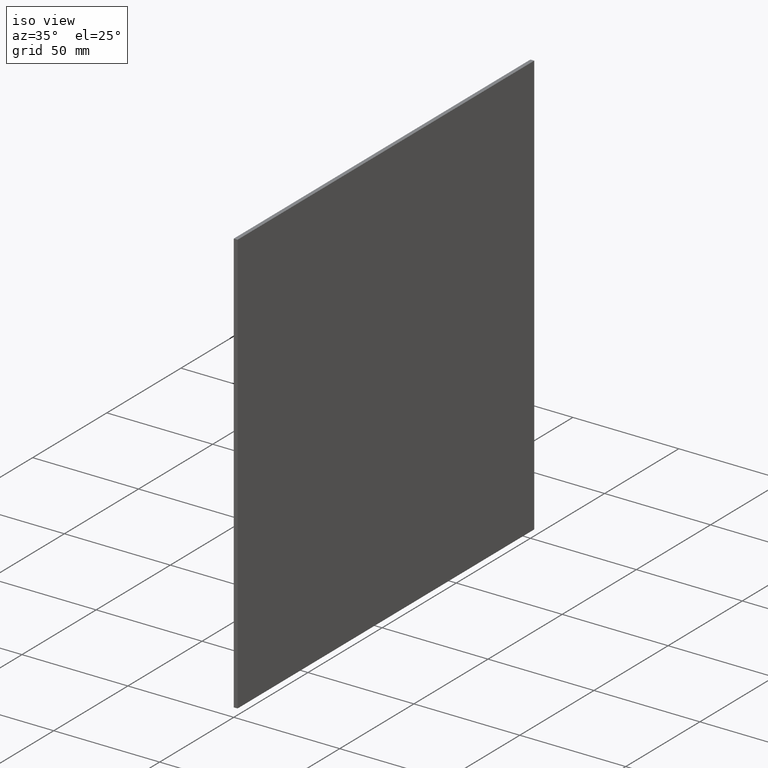
[diagram: clean part render]
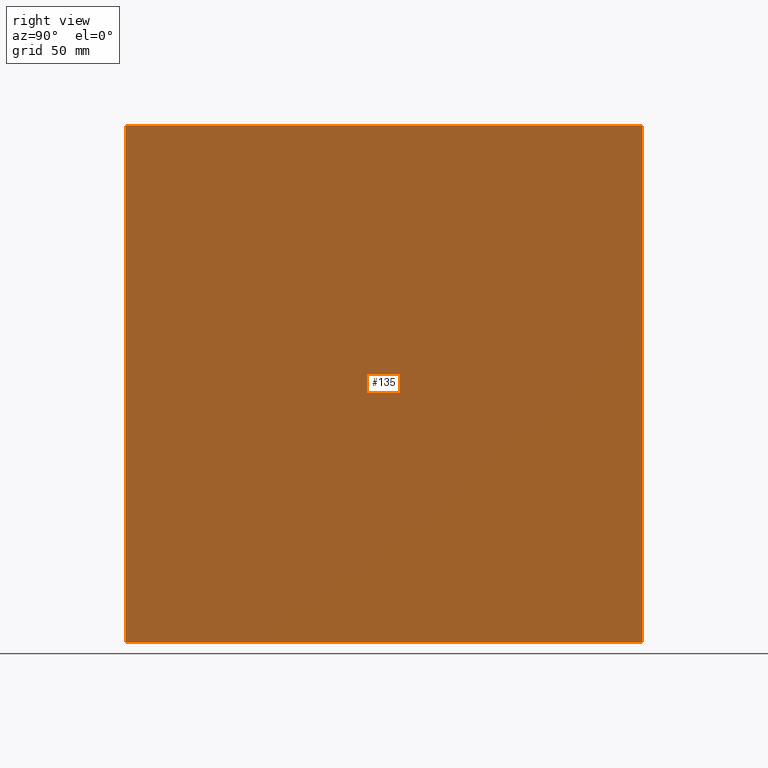
[diagram: tour spotlight — one face highlighted and labeled with its STEP entity id]
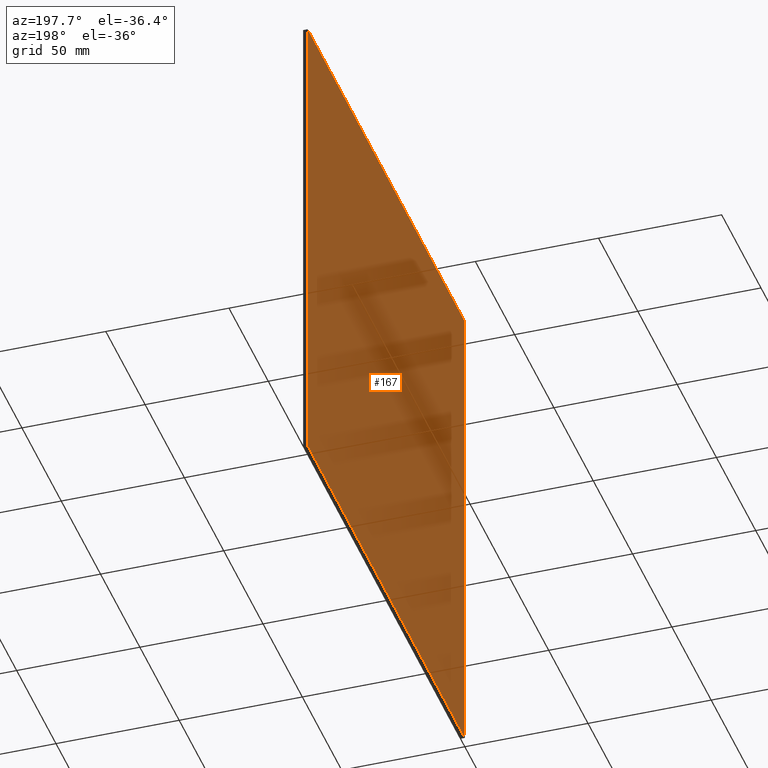
[diagram: tour spotlight — one face highlighted and labeled with its STEP entity id]
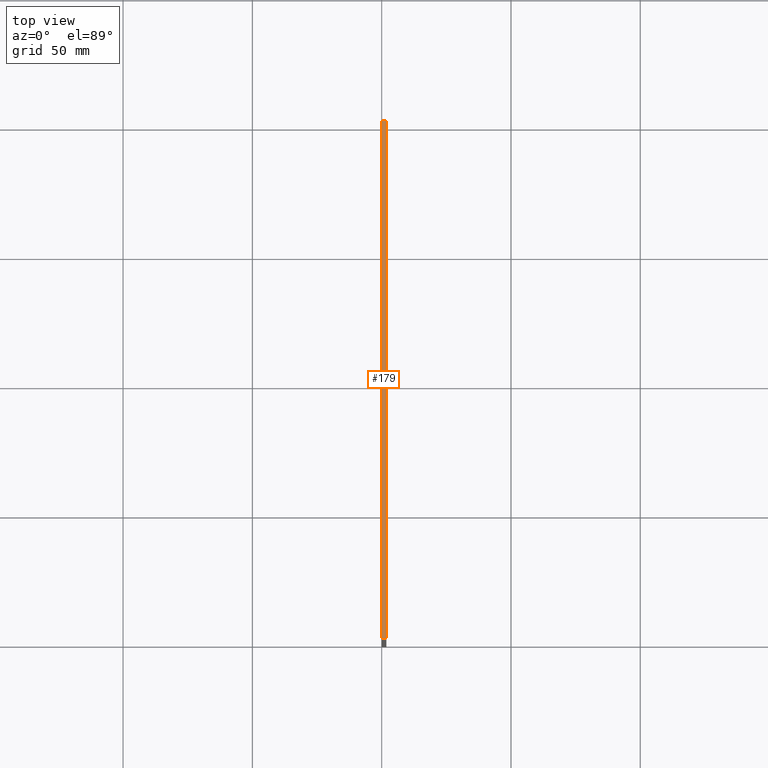
[diagram: tour spotlight — one face highlighted and labeled with its STEP entity id]
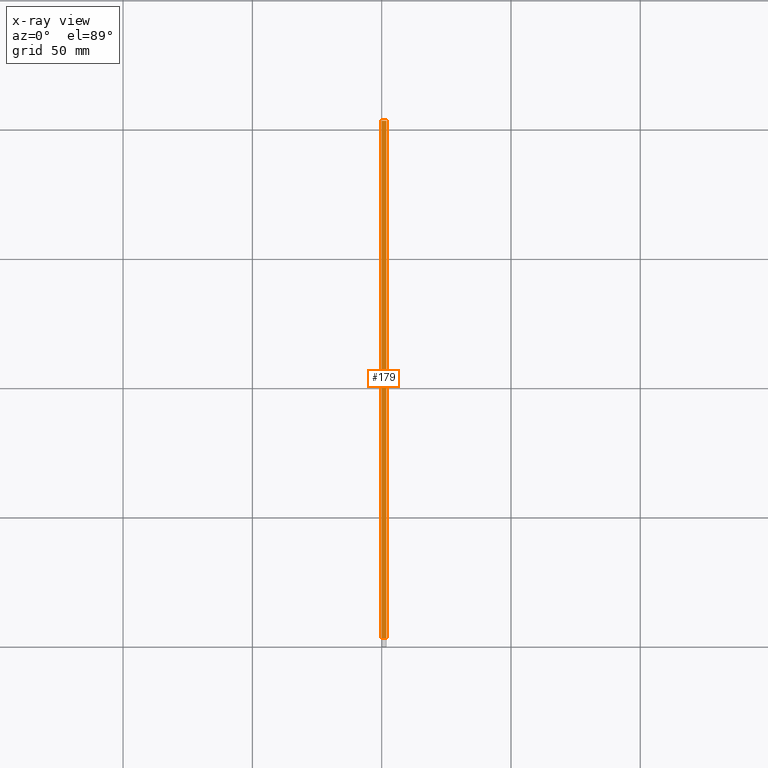
[diagram: x-ray of the same camera — body ghosted, this tour face saturated]
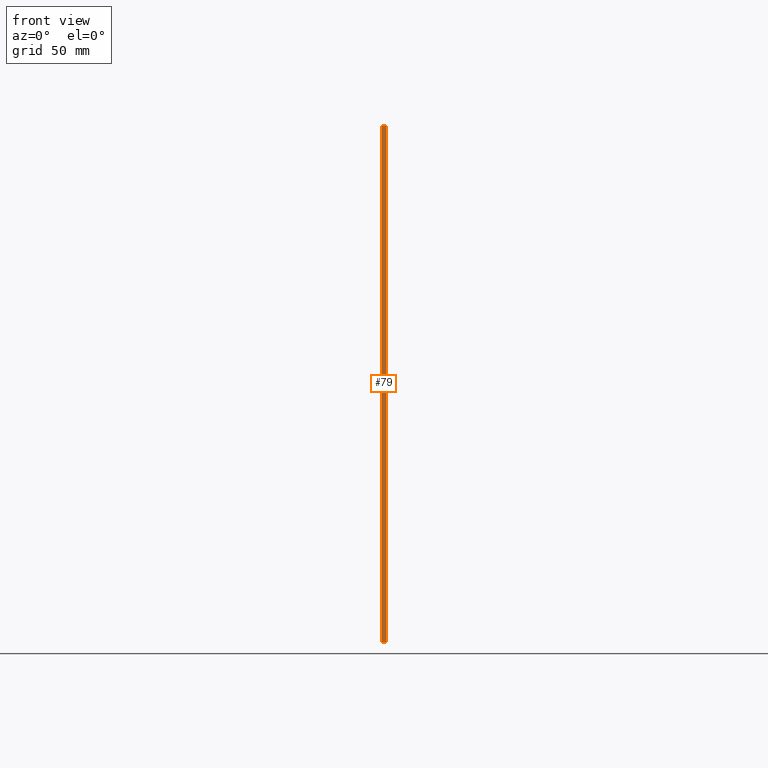
[diagram: tour spotlight — one face highlighted and labeled with its STEP entity id]
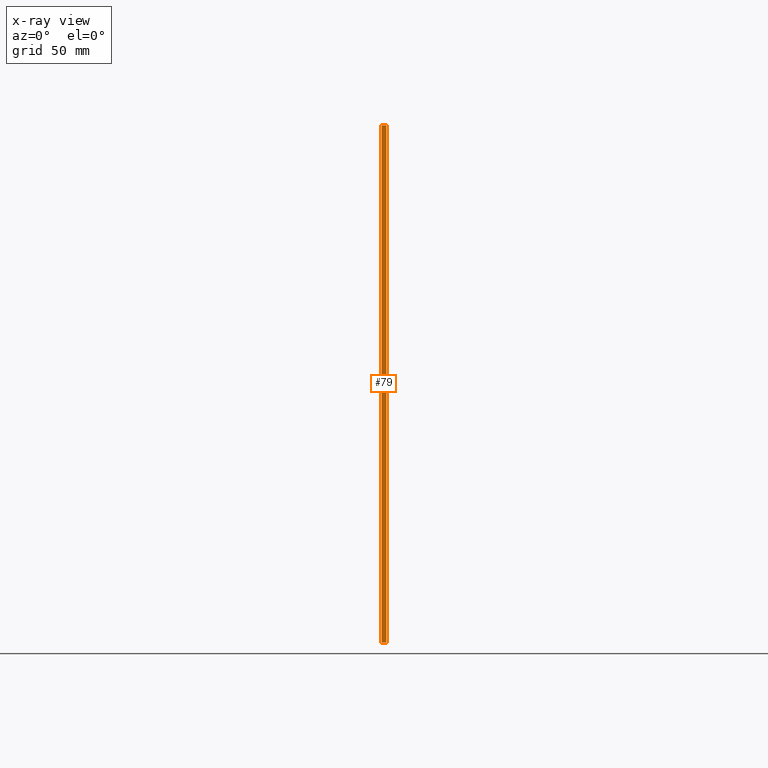
[diagram: x-ray of the same camera — body ghosted, this tour face saturated]
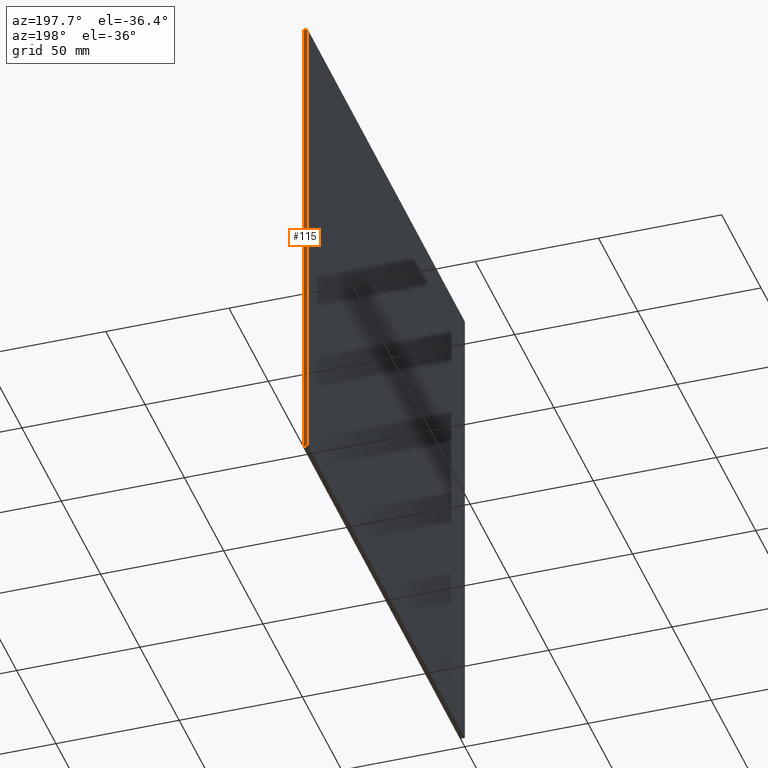
[diagram: tour spotlight — one face highlighted and labeled with its STEP entity id]
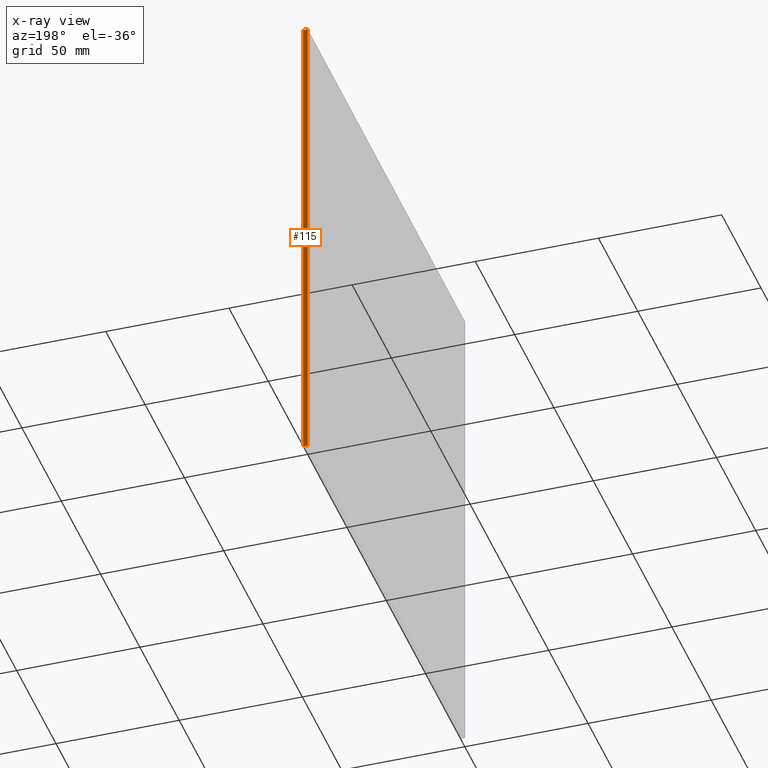
[diagram: x-ray of the same camera — body ghosted, this tour face saturated]
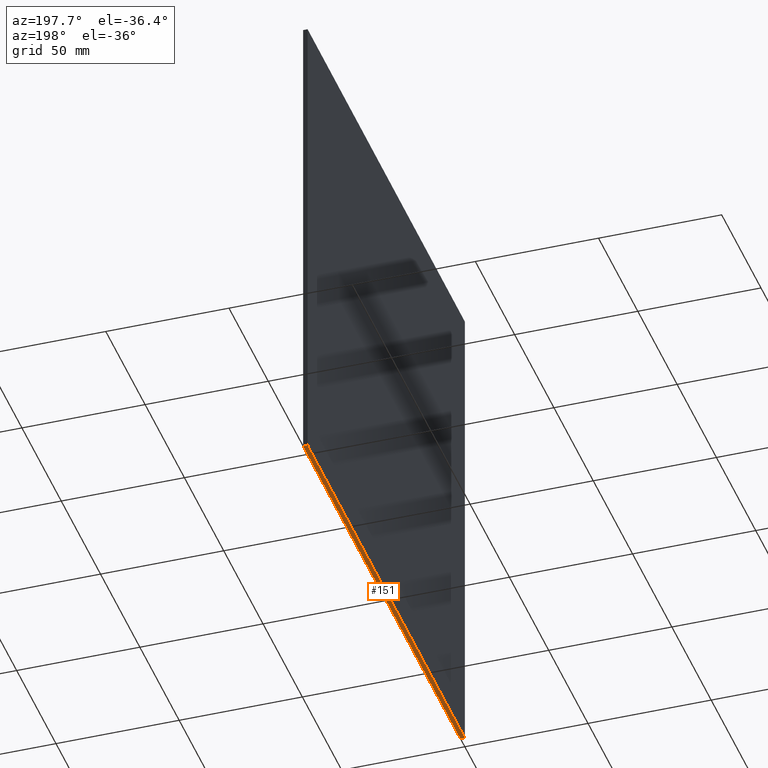
[diagram: tour spotlight — one face highlighted and labeled with its STEP entity id]
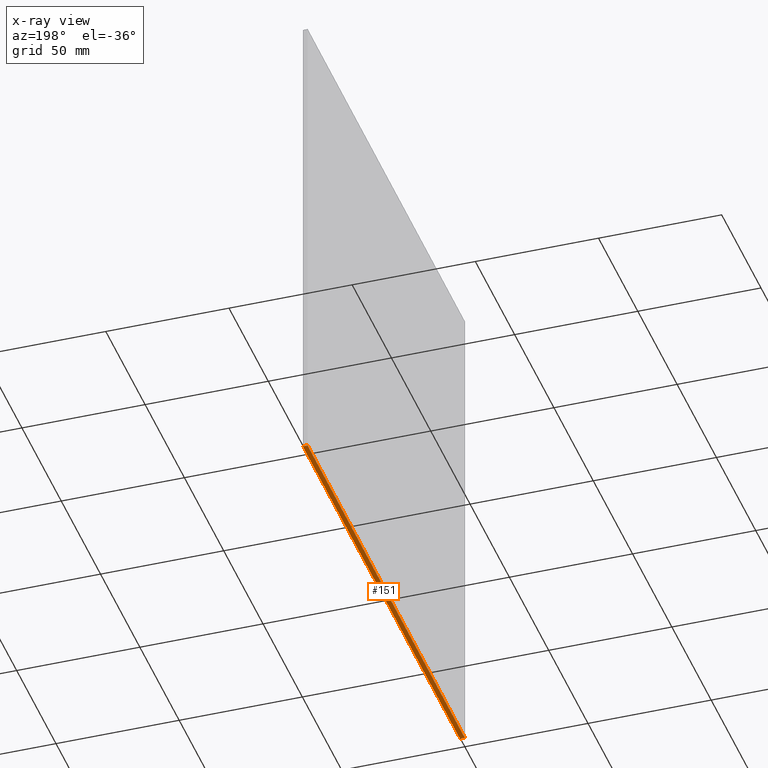
[diagram: x-ray of the same camera — body ghosted, this tour face saturated]
A machine part: a face-by-face anatomy tour. The part has 6 B-rep faces; the first image is the clean iso view, then the 6 largest visible faces are spotlighted one at a time (largest first), each with its STEP entity span.

Face 1 — right view, entity #135. In plain terms, the highlighted face is a freeform B-spline surface patch.
Definition (entity closure, byte-faithful):
#49=CARTESIAN_POINT('',(1.800000000000030,0.0,200.0));
#50=VERTEX_POINT('',#49);
#65=CARTESIAN_POINT('',(1.800000000000030,0.0,7.887024E-013));
#66=VERTEX_POINT('',#65);
#72=CARTESIAN_POINT('',(1.800000000000030,0.0,7.887024E-013));
#73=CARTESIAN_POINT('',(1.800000000000030,0.0,200.0));
#74=QUASI_UNIFORM_CURVE('',1,(#72,#73),.UNSPECIFIED.,.F.,.U.);
#75=EDGE_CURVE('',#66,#50,#74,.T.);
#85=CARTESIAN_POINT('',(1.800000000000030,200.0,200.0));
#86=VERTEX_POINT('',#85);
#94=CARTESIAN_POINT('',(1.800000000000030,200.0,7.887024E-013));
#95=VERTEX_POINT('',#94);
#96=CARTESIAN_POINT('',(1.800000000000030,200.0,7.887024E-013));
#97=CARTESIAN_POINT('',(1.800000000000030,200.0,200.0));
#98=QUASI_UNIFORM_CURVE('',1,(#96,#97),.UNSPECIFIED.,.F.,.U.);
#99=EDGE_CURVE('',#95,#86,#98,.T.);
#116=CARTESIAN_POINT('',(1.800000000000030,-9.989999612361171,209.989999612361200));
#117=CARTESIAN_POINT('',(1.800000000000030,-9.989999612361171,-9.990004976778396));
#118=CARTESIAN_POINT('',(1.800000000000030,209.990004976779200,209.989999612361200));
#119=CARTESIAN_POINT('',(1.800000000000030,209.990004976779200,-9.990004976778396));
#120=B_SPLINE_SURFACE_WITH_KNOTS('',1,1,((#116,#118),(#117,#119)),.UNSPECIFIED.,.F.,.F.,.U.,(2,2),(2,2),(0.0,219.980004589139610),(0.0,219.980004589140410),.UNSPECIFIED.);
#121=ORIENTED_EDGE('',*,*,#75,.F.);
#122=CARTESIAN_POINT('',(1.800000000000030,200.0,7.887024E-013));
#123=CARTESIAN_POINT('',(1.800000000000030,0.0,7.887024E-013));
#124=QUASI_UNIFORM_CURVE('',1,(#122,#123),.UNSPECIFIED.,.F.,.U.);
#125=EDGE_CURVE('',#95,#66,#124,.T.);
#126=ORIENTED_EDGE('',*,*,#125,.F.);
#127=ORIENTED_EDGE('',*,*,#99,.T.);
#128=CARTESIAN_POINT('',(1.800000000000030,200.0,200.0));
#129=CARTESIAN_POINT('',(1.800000000000030,0.0,200.0));
#130=QUASI_UNIFORM_CURVE('',1,(#128,#129),.UNSPECIFIED.,.F.,.U.);
#131=EDGE_CURVE('',#86,#50,#130,.T.);
#132=ORIENTED_EDGE('',*,*,#131,.T.);
#133=EDGE_LOOP('',(#121,#126,#127,#132));
#134=FACE_OUTER_BOUND('',#133,.T.);
#135=ADVANCED_FACE('',(#134),#120,.T.);

Face 2 — auxiliary view, entity #167. In plain terms, the highlighted face is a freeform B-spline surface patch.
Definition (entity closure, byte-faithful):
#51=CARTESIAN_POINT('',(0.0,0.0,200.0));
#52=VERTEX_POINT('',#51);
#58=CARTESIAN_POINT('',(0.0,0.0,7.887024E-013));
#59=VERTEX_POINT('',#58);
#60=CARTESIAN_POINT('',(0.0,0.0,200.0));
#61=CARTESIAN_POINT('',(0.0,0.0,7.887024E-013));
#62=QUASI_UNIFORM_CURVE('',1,(#60,#61),.UNSPECIFIED.,.F.,.U.);
#63=EDGE_CURVE('',#52,#59,#62,.T.);
#87=CARTESIAN_POINT('',(0.0,200.0,200.0));
#88=VERTEX_POINT('',#87);
#101=CARTESIAN_POINT('',(0.0,200.0,7.887024E-013));
#102=VERTEX_POINT('',#101);
#108=CARTESIAN_POINT('',(0.0,200.0,200.0));
#109=CARTESIAN_POINT('',(0.0,200.0,7.887024E-013));
#110=QUASI_UNIFORM_CURVE('',1,(#108,#109),.UNSPECIFIED.,.F.,.U.);
#111=EDGE_CURVE('',#88,#102,#110,.T.);
#142=CARTESIAN_POINT('',(0.0,200.0,7.887024E-013));
#143=CARTESIAN_POINT('',(0.0,0.0,7.887024E-013));
#144=QUASI_UNIFORM_CURVE('',1,(#142,#143),.UNSPECIFIED.,.F.,.U.);
#145=EDGE_CURVE('',#102,#59,#144,.T.);
#152=CARTESIAN_POINT('',(0.0,-9.989999612361194,-9.989999612360386));
#153=CARTESIAN_POINT('',(0.0,-9.989999612361194,209.990004976779200));
#154=CARTESIAN_POINT('',(0.0,209.990004976779200,-9.989999612360386));
#155=CARTESIAN_POINT('',(0.0,209.990004976779200,209.990004976779200));
#156=B_SPLINE_SURFACE_WITH_KNOTS('',1,1,((#152,#154),(#153,#155)),.UNSPECIFIED.,.F.,.F.,.U.,(2,2),(2,2),(0.0,219.980004589139500),(0.0,219.980004589140410),.UNSPECIFIED.);
#157=ORIENTED_EDGE('',*,*,#63,.F.);
#158=CARTESIAN_POINT('',(0.0,200.0,200.0));
#159=CARTESIAN_POINT('',(0.0,0.0,200.0));
#160=QUASI_UNIFORM_CURVE('',1,(#158,#159),.UNSPECIFIED.,.F.,.U.);
#161=EDGE_CURVE('',#88,#52,#160,.T.);
#162=ORIENTED_EDGE('',*,*,#161,.F.);
#163=ORIENTED_EDGE('',*,*,#111,.T.);
#164=ORIENTED_EDGE('',*,*,#145,.T.);
#165=EDGE_LOOP('',(#157,#162,#163,#164));
#166=FACE_OUTER_BOUND('',#165,.T.);
#167=ADVANCED_FACE('',(#166),#156,.T.);

Face 3 — top view, entity #179. An x-ray twin of the same camera follows (body ghosted, this face saturated) — the face is partly hidden behind the body. In plain terms, the highlighted face is a freeform B-spline surface patch.
Definition (entity closure, byte-faithful):
#49=CARTESIAN_POINT('',(1.800000000000030,0.0,200.0));
#50=VERTEX_POINT('',#49);
#51=CARTESIAN_POINT('',(0.0,0.0,200.0));
#52=VERTEX_POINT('',#51);
#53=CARTESIAN_POINT('',(1.800000000000030,0.0,200.0));
#54=CARTESIAN_POINT('',(0.0,0.0,200.0));
#55=QUASI_UNIFORM_CURVE('',1,(#53,#54),.UNSPECIFIED.,.F.,.U.);
#56=EDGE_CURVE('',#50,#52,#55,.T.);
#85=CARTESIAN_POINT('',(1.800000000000030,200.0,200.0));
#86=VERTEX_POINT('',#85);
#87=CARTESIAN_POINT('',(0.0,200.0,200.0));
#88=VERTEX_POINT('',#87);
#89=CARTESIAN_POINT('',(1.800000000000030,200.0,200.0));
#90=CARTESIAN_POINT('',(0.0,200.0,200.0));
#91=QUASI_UNIFORM_CURVE('',1,(#89,#90),.UNSPECIFIED.,.F.,.U.);
#92=EDGE_CURVE('',#86,#88,#91,.T.);
#128=CARTESIAN_POINT('',(1.800000000000030,200.0,200.0));
#129=CARTESIAN_POINT('',(1.800000000000030,0.0,200.0));
#130=QUASI_UNIFORM_CURVE('',1,(#128,#129),.UNSPECIFIED.,.F.,.U.);
#131=EDGE_CURVE('',#86,#50,#130,.T.);
#158=CARTESIAN_POINT('',(0.0,200.0,200.0));
#159=CARTESIAN_POINT('',(0.0,0.0,200.0));
#160=QUASI_UNIFORM_CURVE('',1,(#158,#159),.UNSPECIFIED.,.F.,.U.);
#161=EDGE_CURVE('',#88,#52,#160,.T.);
#168=CARTESIAN_POINT('',(-0.089909990080388,-9.989999612361194,199.999999999999200));
#169=CARTESIAN_POINT('',(1.889909909614147,-9.989999612361194,200.000000000000110));
#170=CARTESIAN_POINT('',(-0.089909990080388,209.990004976779200,199.999999999999200));
#171=CARTESIAN_POINT('',(1.889909909614147,209.990004976779200,200.000000000000110));
#172=B_SPLINE_SURFACE_WITH_KNOTS('',1,1,((#168,#170),(#169,#171)),.UNSPECIFIED.,.F.,.F.,.U.,(2,2),(2,2),(0.0,1.979819899694535),(0.0,219.980004589140410),.UNSPECIFIED.);
#173=ORIENTED_EDGE('',*,*,#56,.F.);
#174=ORIENTED_EDGE('',*,*,#131,.F.);
#175=ORIENTED_EDGE('',*,*,#92,.T.);
#176=ORIENTED_EDGE('',*,*,#161,.T.);
#177=EDGE_LOOP('',(#173,#174,#175,#176));
#178=FACE_OUTER_BOUND('',#177,.T.);
#179=ADVANCED_FACE('',(#178),#172,.T.);

Face 4 — front view, entity #79. An x-ray twin of the same camera follows (body ghosted, this face saturated) — the face is partly hidden behind the body. In plain terms, the highlighted face is a freeform B-spline surface patch.
Definition (entity closure, byte-faithful):
#44=CARTESIAN_POINT('',(-0.089909990080388,0.0,209.989999612361200));
#45=CARTESIAN_POINT('',(1.889909909614147,0.0,209.989999612361200));
#46=CARTESIAN_POINT('',(-0.089909990080388,0.0,-9.990004976778407));
#47=CARTESIAN_POINT('',(1.889909909614147,0.0,-9.990004976778407));
#48=B_SPLINE_SURFACE_WITH_KNOTS('',1,1,((#44,#46),(#45,#47)),.UNSPECIFIED.,.F.,.F.,.U.,(2,2),(2,2),(0.0,1.979819899694535),(0.0,219.980004589139610),.UNSPECIFIED.);
#49=CARTESIAN_POINT('',(1.800000000000030,0.0,200.0));
#50=VERTEX_POINT('',#49);
#51=CARTESIAN_POINT('',(0.0,0.0,200.0));
#52=VERTEX_POINT('',#51);
#53=CARTESIAN_POINT('',(1.800000000000030,0.0,200.0));
#54=CARTESIAN_POINT('',(0.0,0.0,200.0));
#55=QUASI_UNIFORM_CURVE('',1,(#53,#54),.UNSPECIFIED.,.F.,.U.);
#56=EDGE_CURVE('',#50,#52,#55,.T.);
#57=ORIENTED_EDGE('',*,*,#56,.T.);
#58=CARTESIAN_POINT('',(0.0,0.0,7.887024E-013));
#59=VERTEX_POINT('',#58);
#60=CARTESIAN_POINT('',(0.0,0.0,200.0));
#61=CARTESIAN_POINT('',(0.0,0.0,7.887024E-013));
#62=QUASI_UNIFORM_CURVE('',1,(#60,#61),.UNSPECIFIED.,.F.,.U.);
#63=EDGE_CURVE('',#52,#59,#62,.T.);
#64=ORIENTED_EDGE('',*,*,#63,.T.);
#65=CARTESIAN_POINT('',(1.800000000000030,0.0,7.887024E-013));
#66=VERTEX_POINT('',#65);
#67=CARTESIAN_POINT('',(0.0,0.0,7.887024E-013));
#68=CARTESIAN_POINT('',(1.800000000000030,0.0,7.887024E-013));
#69=QUASI_UNIFORM_CURVE('',1,(#67,#68),.UNSPECIFIED.,.F.,.U.);
#70=EDGE_CURVE('',#59,#66,#69,.T.);
#71=ORIENTED_EDGE('',*,*,#70,.T.);
#72=CARTESIAN_POINT('',(1.800000000000030,0.0,7.887024E-013));
#73=CARTESIAN_POINT('',(1.800000000000030,0.0,200.0));
#74=QUASI_UNIFORM_CURVE('',1,(#72,#73),.UNSPECIFIED.,.F.,.U.);
#75=EDGE_CURVE('',#66,#50,#74,.T.);
#76=ORIENTED_EDGE('',*,*,#75,.T.);
#77=EDGE_LOOP('',(#57,#64,#71,#76));
#78=FACE_OUTER_BOUND('',#77,.T.);
#79=ADVANCED_FACE('',(#78),#48,.F.);

Face 5 — auxiliary view, entity #115. An x-ray twin of the same camera follows (body ghosted, this face saturated) — the face is partly hidden behind the body. In plain terms, the highlighted face is a freeform B-spline surface patch.
Definition (entity closure, byte-faithful):
#80=CARTESIAN_POINT('',(-0.089909990080388,200.0,209.989999612361200));
#81=CARTESIAN_POINT('',(1.889909909614147,200.0,209.989999612361200));
#82=CARTESIAN_POINT('',(-0.089909990080388,200.0,-9.990004976778407));
#83=CARTESIAN_POINT('',(1.889909909614147,200.0,-9.990004976778407));
#84=B_SPLINE_SURFACE_WITH_KNOTS('',1,1,((#80,#82),(#81,#83)),.UNSPECIFIED.,.F.,.F.,.U.,(2,2),(2,2),(0.0,1.979819899694535),(0.0,219.980004589139610),.UNSPECIFIED.);
#85=CARTESIAN_POINT('',(1.800000000000030,200.0,200.0));
#86=VERTEX_POINT('',#85);
#87=CARTESIAN_POINT('',(0.0,200.0,200.0));
#88=VERTEX_POINT('',#87);
#89=CARTESIAN_POINT('',(1.800000000000030,200.0,200.0));
#90=CARTESIAN_POINT('',(0.0,200.0,200.0));
#91=QUASI_UNIFORM_CURVE('',1,(#89,#90),.UNSPECIFIED.,.F.,.U.);
#92=EDGE_CURVE('',#86,#88,#91,.T.);
#93=ORIENTED_EDGE('',*,*,#92,.F.);
#94=CARTESIAN_POINT('',(1.800000000000030,200.0,7.887024E-013));
#95=VERTEX_POINT('',#94);
#96=CARTESIAN_POINT('',(1.800000000000030,200.0,7.887024E-013));
#97=CARTESIAN_POINT('',(1.800000000000030,200.0,200.0));
#98=QUASI_UNIFORM_CURVE('',1,(#96,#97),.UNSPECIFIED.,.F.,.U.);
#99=EDGE_CURVE('',#95,#86,#98,.T.);
#100=ORIENTED_EDGE('',*,*,#99,.F.);
#101=CARTESIAN_POINT('',(0.0,200.0,7.887024E-013));
#102=VERTEX_POINT('',#101);
#103=CARTESIAN_POINT('',(0.0,200.0,7.887024E-013));
#104=CARTESIAN_POINT('',(1.800000000000030,200.0,7.887024E-013));
#105=QUASI_UNIFORM_CURVE('',1,(#103,#104),.UNSPECIFIED.,.F.,.U.);
#106=EDGE_CURVE('',#102,#95,#105,.T.);
#107=ORIENTED_EDGE('',*,*,#106,.F.);
#108=CARTESIAN_POINT('',(0.0,200.0,200.0));
#109=CARTESIAN_POINT('',(0.0,200.0,7.887024E-013));
#110=QUASI_UNIFORM_CURVE('',1,(#108,#109),.UNSPECIFIED.,.F.,.U.);
#111=EDGE_CURVE('',#88,#102,#110,.T.);
#112=ORIENTED_EDGE('',*,*,#111,.F.);
#113=EDGE_LOOP('',(#93,#100,#107,#112));
#114=FACE_OUTER_BOUND('',#113,.T.);
#115=ADVANCED_FACE('',(#114),#84,.T.);

Face 6 — auxiliary view, entity #151. An x-ray twin of the same camera follows (body ghosted, this face saturated) — the face is partly hidden behind the body. In plain terms, the highlighted face is a freeform B-spline surface patch.
Definition (entity closure, byte-faithful):
#58=CARTESIAN_POINT('',(0.0,0.0,7.887024E-013));
#59=VERTEX_POINT('',#58);
#65=CARTESIAN_POINT('',(1.800000000000030,0.0,7.887024E-013));
#66=VERTEX_POINT('',#65);
#67=CARTESIAN_POINT('',(0.0,0.0,7.887024E-013));
#68=CARTESIAN_POINT('',(1.800000000000030,0.0,7.887024E-013));
#69=QUASI_UNIFORM_CURVE('',1,(#67,#68),.UNSPECIFIED.,.F.,.U.);
#70=EDGE_CURVE('',#59,#66,#69,.T.);
#94=CARTESIAN_POINT('',(1.800000000000030,200.0,7.887024E-013));
#95=VERTEX_POINT('',#94);
#101=CARTESIAN_POINT('',(0.0,200.0,7.887024E-013));
#102=VERTEX_POINT('',#101);
#103=CARTESIAN_POINT('',(0.0,200.0,7.887024E-013));
#104=CARTESIAN_POINT('',(1.800000000000030,200.0,7.887024E-013));
#105=QUASI_UNIFORM_CURVE('',1,(#103,#104),.UNSPECIFIED.,.F.,.U.);
#106=EDGE_CURVE('',#102,#95,#105,.T.);
#122=CARTESIAN_POINT('',(1.800000000000030,200.0,7.887024E-013));
#123=CARTESIAN_POINT('',(1.800000000000030,0.0,7.887024E-013));
#124=QUASI_UNIFORM_CURVE('',1,(#122,#123),.UNSPECIFIED.,.F.,.U.);
#125=EDGE_CURVE('',#95,#66,#124,.T.);
#136=CARTESIAN_POINT('',(1.889909945819946,-9.989999612361171,8.280981E-013));
#137=CARTESIAN_POINT('',(-0.089910042379440,-9.989999612361171,-3.939571E-014));
#138=CARTESIAN_POINT('',(1.889909945819946,209.990004976779200,8.280981E-013));
#139=CARTESIAN_POINT('',(-0.089910042379440,209.990004976779200,-3.939571E-014));
#140=B_SPLINE_SURFACE_WITH_KNOTS('',1,1,((#136,#138),(#137,#139)),.UNSPECIFIED.,.F.,.F.,.U.,(2,2),(2,2),(0.0,1.979819988199386),(0.0,219.980004589140410),.UNSPECIFIED.);
#141=ORIENTED_EDGE('',*,*,#70,.F.);
#142=CARTESIAN_POINT('',(0.0,200.0,7.887024E-013));
#143=CARTESIAN_POINT('',(0.0,0.0,7.887024E-013));
#144=QUASI_UNIFORM_CURVE('',1,(#142,#143),.UNSPECIFIED.,.F.,.U.);
#145=EDGE_CURVE('',#102,#59,#144,.T.);
#146=ORIENTED_EDGE('',*,*,#145,.F.);
#147=ORIENTED_EDGE('',*,*,#106,.T.);
#148=ORIENTED_EDGE('',*,*,#125,.T.);
#149=EDGE_LOOP('',(#141,#146,#147,#148));
#150=FACE_OUTER_BOUND('',#149,.T.);
#151=ADVANCED_FACE('',(#150),#140,.T.);